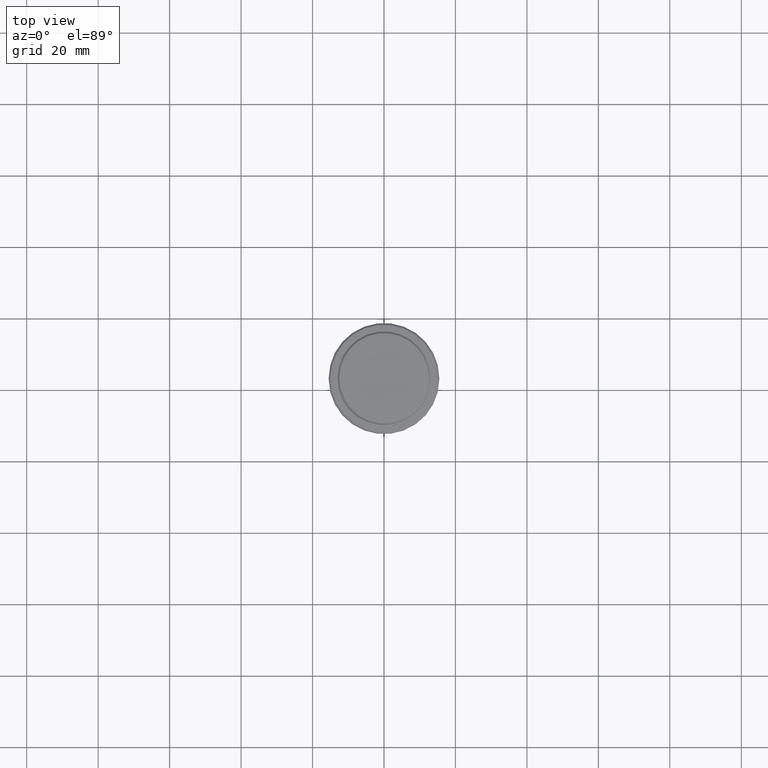
[diagram: clean part render]
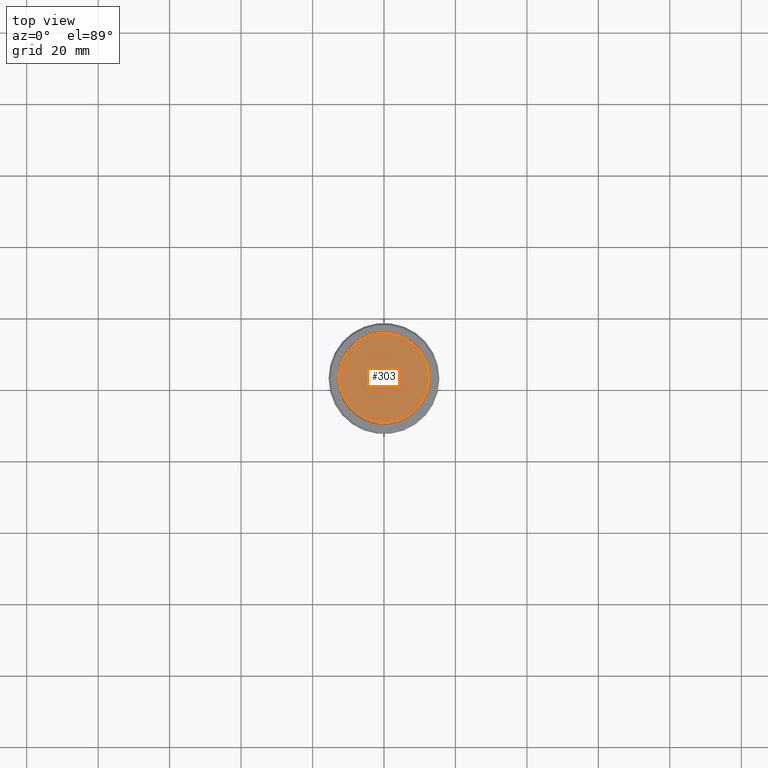
[diagram: same view with one face highlighted and labeled with its STEP entity id]
A machine part, top view. The second image highlights one B-rep face of the part: STEP entity #303.
In plain terms, the highlighted planar face has unit normal (0, -0, 1).
Its self-contained STEP definition (entity closure, byte-faithful):
#74 = CARTESIAN_POINT ( 'NONE',  ( -12.49999999999998579, 0.000000000000000000, 0.000000000000000000 ) ) ;
#89 = VERTEX_POINT ( 'NONE', #605 ) ;
#177 = VERTEX_POINT ( 'NONE', #74 ) ;
#203 = CIRCLE ( 'NONE', #1108, 12.49999999999998579 ) ;
#303 = ADVANCED_FACE ( 'NONE', ( #1228 ), #361, .T. ) ;
#342 = DIRECTION ( 'NONE',  ( -0.000000000000000000, -0.000000000000000000, 1.000000000000000000 ) ) ;
#361 = PLANE ( 'NONE',  #859 ) ;
#406 = EDGE_LOOP ( 'NONE', ( #623, #1028 ) ) ;
#439 = DIRECTION ( 'NONE',  ( -0.000000000000000000, -0.000000000000000000, 1.000000000000000000 ) ) ;
#448 = CARTESIAN_POINT ( 'NONE',  ( 0.000000000000000000, 0.000000000000000000, 0.000000000000000000 ) ) ;
#497 = CIRCLE ( 'NONE', #796, 12.49999999999998579 ) ;
#605 = CARTESIAN_POINT ( 'NONE',  ( 12.49999999999998579, 1.561424668912874125E-15, 0.000000000000000000 ) ) ;
#623 = ORIENTED_EDGE ( 'NONE', *, *, #933, .T. ) ;
#684 = CARTESIAN_POINT ( 'NONE',  ( 0.000000000000000000, 0.000000000000000000, 0.000000000000000000 ) ) ;
#796 = AXIS2_PLACEMENT_3D ( 'NONE', #1332, #342, #1210 ) ;
#859 = AXIS2_PLACEMENT_3D ( 'NONE', #684, #1401, #1058 ) ;
#933 = EDGE_CURVE ( 'NONE', #177, #89, #497, .T. ) ;
#1004 = DIRECTION ( 'NONE',  ( 1.000000000000000000, 0.000000000000000000, 0.000000000000000000 ) ) ;
#1028 = ORIENTED_EDGE ( 'NONE', *, *, #1336, .T. ) ;
#1058 = DIRECTION ( 'NONE',  ( 1.000000000000000000, 0.000000000000000000, 0.000000000000000000 ) ) ;
#1108 = AXIS2_PLACEMENT_3D ( 'NONE', #448, #439, #1004 ) ;
#1210 = DIRECTION ( 'NONE',  ( 1.000000000000000000, 0.000000000000000000, 0.000000000000000000 ) ) ;
#1228 = FACE_OUTER_BOUND ( 'NONE', #406, .T. ) ;
#1332 = CARTESIAN_POINT ( 'NONE',  ( 0.000000000000000000, 0.000000000000000000, 0.000000000000000000 ) ) ;
#1336 = EDGE_CURVE ( 'NONE', #89, #177, #203, .T. ) ;
#1401 = DIRECTION ( 'NONE',  ( 0.000000000000000000, -0.000000000000000000, 1.000000000000000000 ) ) ;